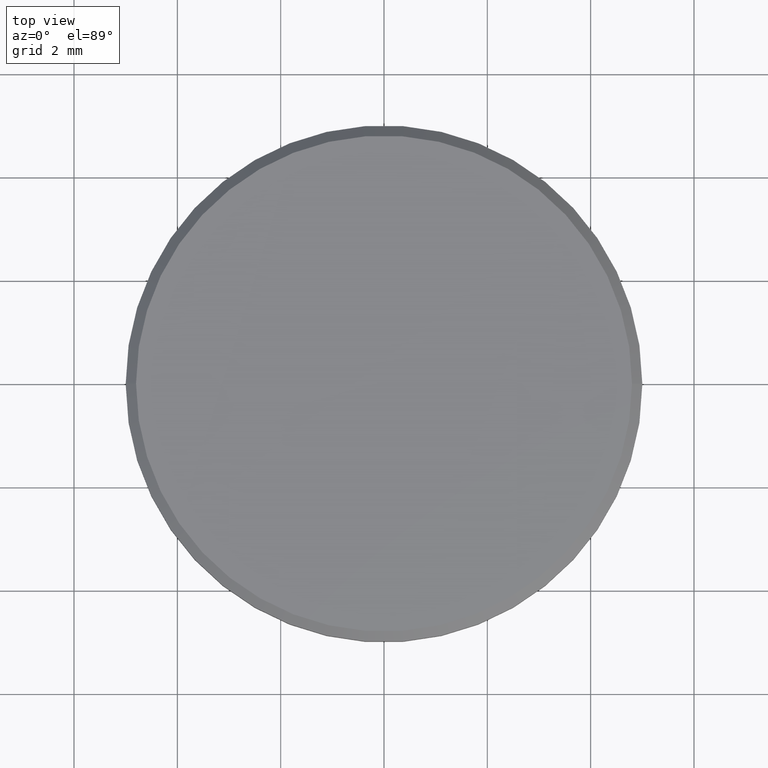
[diagram: clean part render]
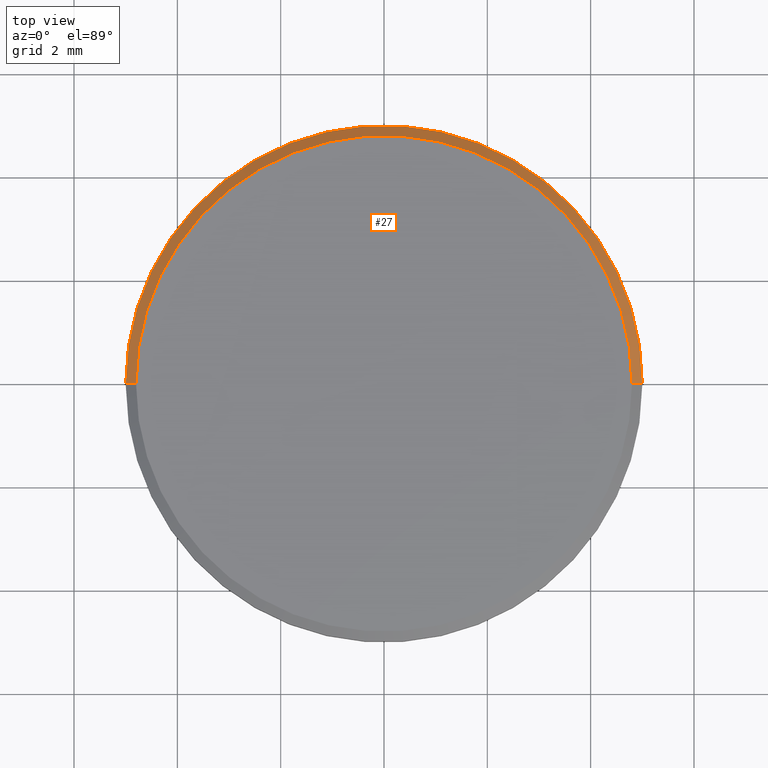
[diagram: same view with one face highlighted and labeled with its STEP entity id]
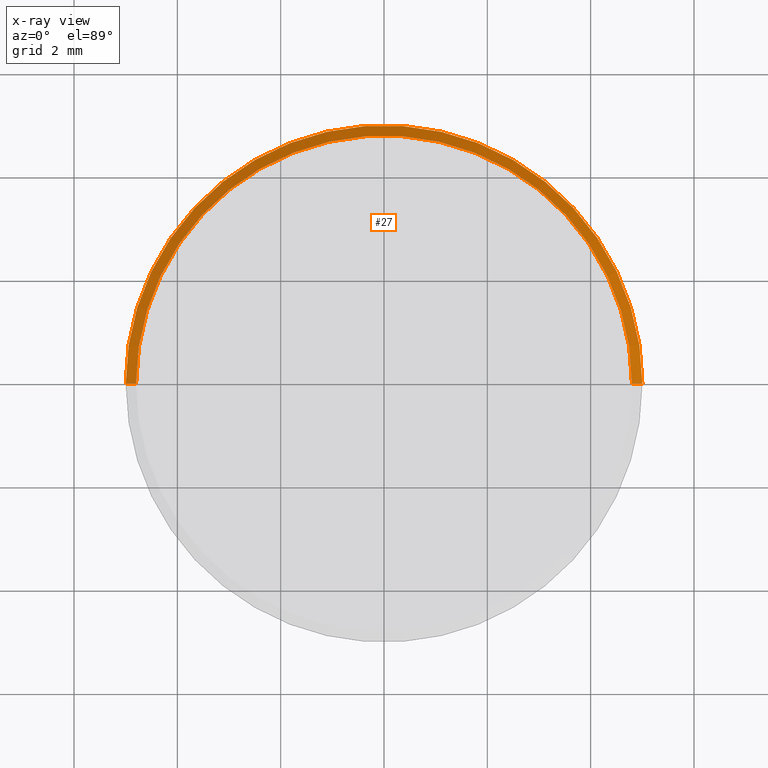
[diagram: x-ray of the same camera — body ghosted, the highlighted face saturated]
A machine part, top view. The second image highlights one B-rep face of the part: STEP entity #27.
The next image is the same camera in x-ray: the body ghosted, the highlighted face saturated — about 0% of this face is hidden behind the body in this view.
In plain terms, the highlighted conical surface has half-angle 45 deg.
Its self-contained STEP definition (entity closure, byte-faithful):
#5 = EDGE_CURVE ( 'NONE', #136, #124, #221, .T. ) ;
#13 = CARTESIAN_POINT ( 'NONE',  ( 0.000000000000000000, 0.000000000000000000, 1.000000000000000000 ) ) ;
#14 = VECTOR ( 'NONE', #73, 1000.000000000000114 ) ;
#17 = CARTESIAN_POINT ( 'NONE',  ( -4.800000000000002487, 0.000000000000000000, 1.000000000000000000 ) ) ;
#19 = CARTESIAN_POINT ( 'NONE',  ( 5.000000000000000000, 6.123233995736766282E-16, 0.8000000000000012657 ) ) ;
#20 = EDGE_CURVE ( 'NONE', #198, #136, #74, .T. ) ;
#27 = ADVANCED_FACE ( 'NONE', ( #47 ), #42, .T. ) ;
#40 = CIRCLE ( 'NONE', #204, 4.800000000000002487 ) ;
#42 = CONICAL_SURFACE ( 'NONE', #77, 4.800000000000002487, 0.7853981633974461696 ) ;
#44 = EDGE_CURVE ( 'NONE', #143, #198, #40, .T. ) ;
#47 = FACE_OUTER_BOUND ( 'NONE', #75, .T. ) ;
#48 = DIRECTION ( 'NONE',  ( 0.000000000000000000, 0.000000000000000000, -1.000000000000000000 ) ) ;
#50 = DIRECTION ( 'NONE',  ( 1.000000000000000000, 0.000000000000000000, 0.000000000000000000 ) ) ;
#66 = DIRECTION ( 'NONE',  ( 0.7071067811865460184, 8.659560562354913137E-17, -0.7071067811865489050 ) ) ;
#68 = LINE ( 'NONE', #133, #132 ) ;
#69 = ORIENTED_EDGE ( 'NONE', *, *, #5, .F. ) ;
#73 = DIRECTION ( 'NONE',  ( -0.7071067811865460184, 0.000000000000000000, -0.7071067811865489050 ) ) ;
#74 = LINE ( 'NONE', #17, #14 ) ;
#75 = EDGE_LOOP ( 'NONE', ( #90, #196, #69, #155 ) ) ;
#77 = AXIS2_PLACEMENT_3D ( 'NONE', #189, #107, #139 ) ;
#90 = ORIENTED_EDGE ( 'NONE', *, *, #44, .F. ) ;
#107 = DIRECTION ( 'NONE',  ( 0.000000000000000000, 0.000000000000000000, -1.000000000000000000 ) ) ;
#112 = CARTESIAN_POINT ( 'NONE',  ( -5.000000000000000000, 0.000000000000000000, 0.8000000000000012657 ) ) ;
#118 = CARTESIAN_POINT ( 'NONE',  ( -4.800000000000002487, 0.000000000000000000, 1.000000000000000000 ) ) ;
#124 = VERTEX_POINT ( 'NONE', #19 ) ;
#132 = VECTOR ( 'NONE', #66, 1000.000000000000114 ) ;
#133 = CARTESIAN_POINT ( 'NONE',  ( 4.800000000000002487, 5.878304635907297169E-16, 1.000000000000000000 ) ) ;
#136 = VERTEX_POINT ( 'NONE', #112 ) ;
#139 = DIRECTION ( 'NONE',  ( -1.000000000000000000, 0.000000000000000000, 0.000000000000000000 ) ) ;
#143 = VERTEX_POINT ( 'NONE', #174 ) ;
#153 = DIRECTION ( 'NONE',  ( 1.000000000000000000, 0.000000000000000000, 0.000000000000000000 ) ) ;
#155 = ORIENTED_EDGE ( 'NONE', *, *, #20, .F. ) ;
#168 = AXIS2_PLACEMENT_3D ( 'NONE', #169, #48, #153 ) ;
#169 = CARTESIAN_POINT ( 'NONE',  ( 0.000000000000000000, 0.000000000000000000, 0.8000000000000012657 ) ) ;
#170 = EDGE_CURVE ( 'NONE', #143, #124, #68, .T. ) ;
#174 = CARTESIAN_POINT ( 'NONE',  ( 4.800000000000002487, 6.000769315822031726E-16, 1.000000000000000000 ) ) ;
#189 = CARTESIAN_POINT ( 'NONE',  ( 0.000000000000000000, 0.000000000000000000, 1.000000000000000000 ) ) ;
#196 = ORIENTED_EDGE ( 'NONE', *, *, #170, .T. ) ;
#198 = VERTEX_POINT ( 'NONE', #118 ) ;
#204 = AXIS2_PLACEMENT_3D ( 'NONE', #13, #232, #50 ) ;
#221 = CIRCLE ( 'NONE', #168, 5.000000000000000000 ) ;
#232 = DIRECTION ( 'NONE',  ( 0.000000000000000000, 0.000000000000000000, 1.000000000000000000 ) ) ;